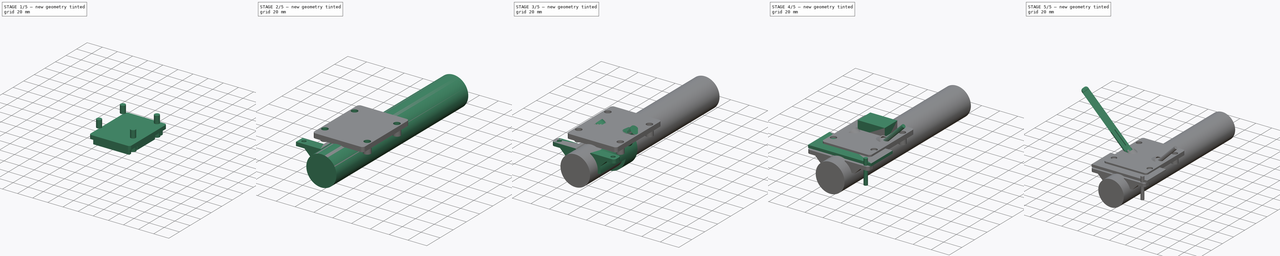
[diagram: build sequence overview — one tinted view per stage of 5, left to right]
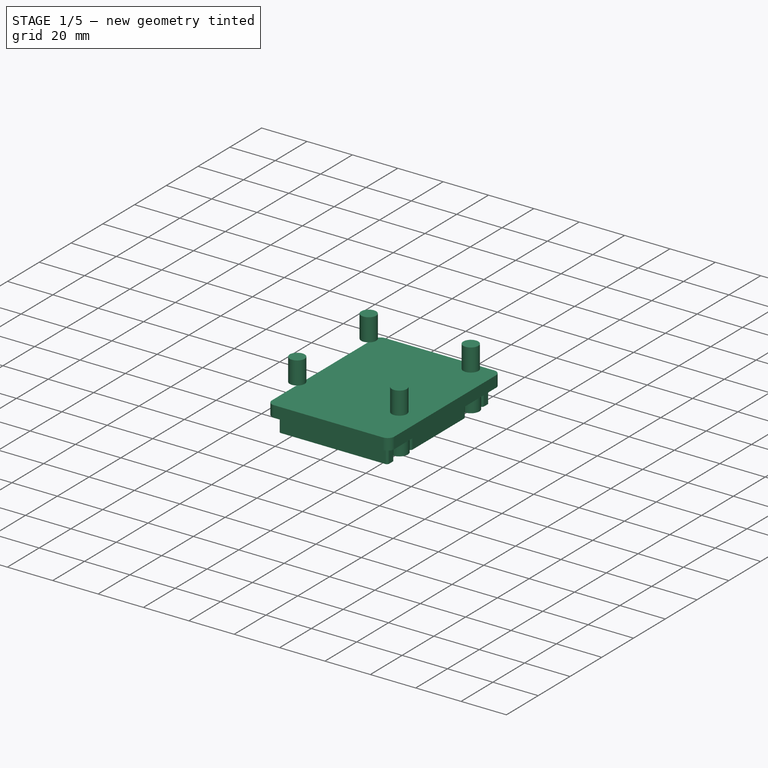
[diagram: stage 1 of 5 — iso view after this stage's code; geometry added in this stage tinted green]
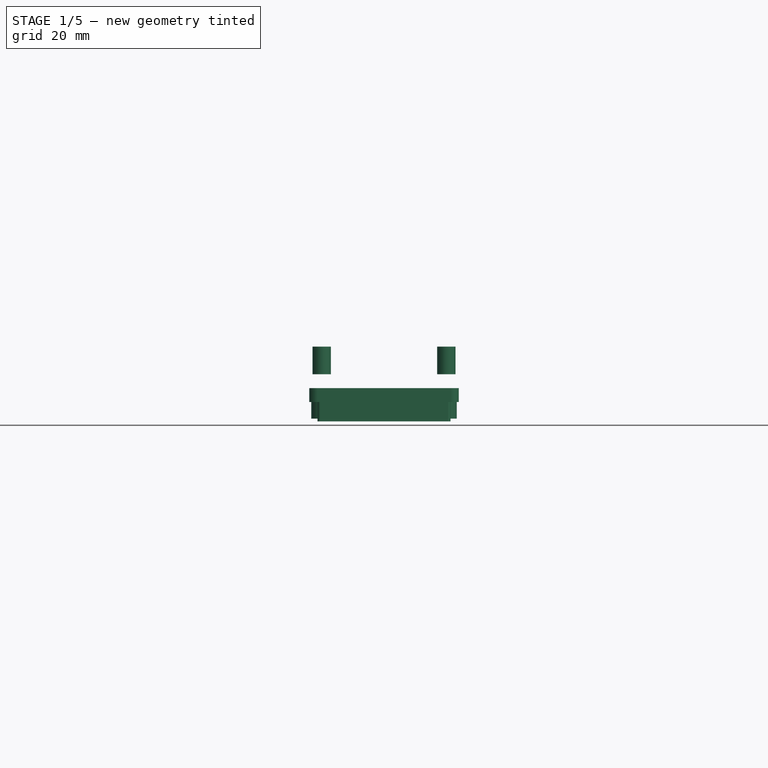
[diagram: stage 1 of 5 — front view after this stage's code; geometry added in this stage tinted green]
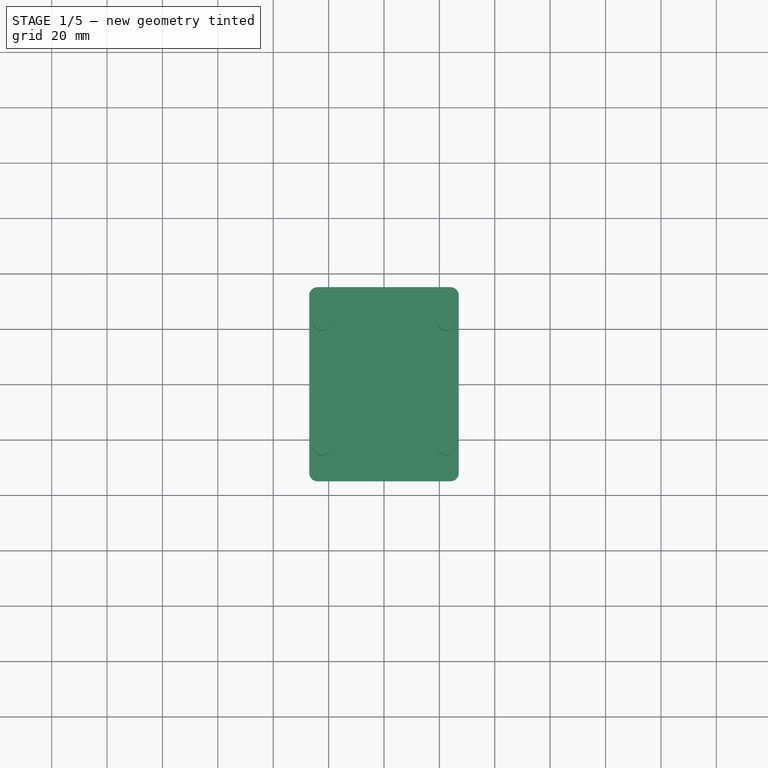
[diagram: stage 1 of 5 — top view after this stage's code; geometry added in this stage tinted green]
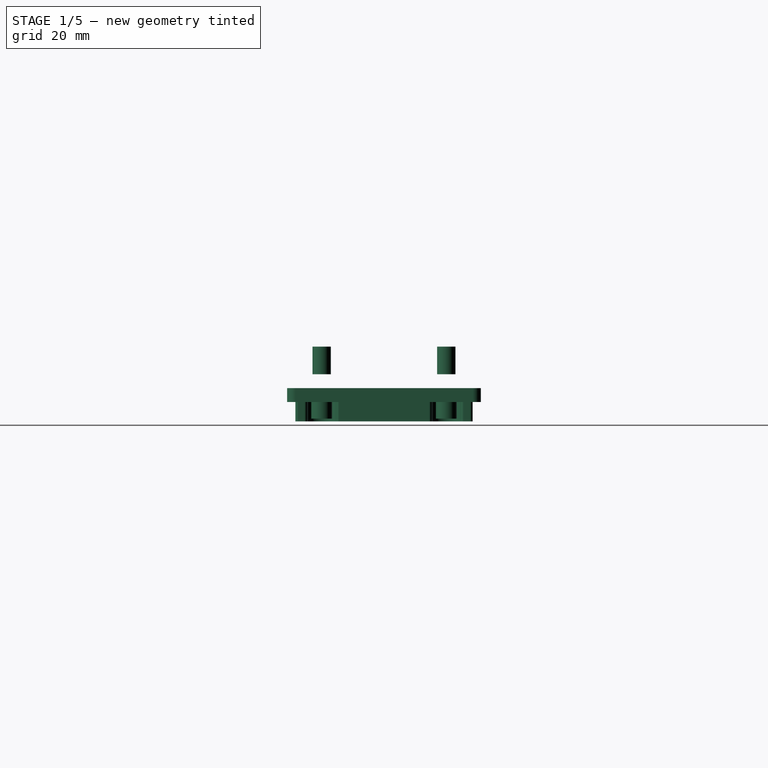
[diagram: stage 1 of 5 — right view after this stage's code; geometry added in this stage tinted green]
FCSTD DOCUMENT  (FreeCAD 0.16R)
Label: antenas_x8r
License: All rights reserved
LicenseURL: http://en.wikipedia.org/wiki/All_rights_reserved
objects: Part::Cylinder×25, Part::Cut×11, Part::MultiFuse×10, Part::Box×7, Part::Fillet×7, Sketcher::SketchObject×5, Part::Mirroring×3, PartDesign::Pad×3, Part::Chamfer×2, Part::Cone×2
note: 78 computed .brp shape members not serialized (recipe doc carries the construction recipe); baked Part::Feature solids carry a one-line shape summary decoded from their .brp

FEATURE [Part::Box] Box008  label="Cube008"
  Height = 5
  Length = 54
  Placement = pos=(-27,-35,0) rot=(0,0,1;0rad)
  Width = 70
FEATURE [Part::Fillet] Fillet005
  Base = -> Box008
  Edges = 4 edges r=3: [Edge1,Edge3,Edge5,Edge7]
FEATURE [Part::Cylinder] Cylinder019
  Angle = 360
  Height = 10
  Placement = pos=(-22.5,-22.5,10) rot=(0,0,1;0rad)
  Radius = 3.3
FEATURE [Part::Cylinder] Cylinder020
  Angle = 360
  Height = 10
  Placement = pos=(22.5,-22.5,10) rot=(0,0,1;0rad)
  Radius = 3.3
FEATURE [Part::Cylinder] Cylinder021
  Angle = 360
  Height = 10
  Placement = pos=(22.5,22.5,10) rot=(0,0,1;0rad)
  Radius = 3.3
FEATURE [Part::Cylinder] Cylinder022
  Angle = 360
  Height = 10
  Placement = pos=(-22.5,22.5,10) rot=(0,0,1;0rad)
  Radius = 3.3
FEATURE [PartDesign::Pad] Pad002
  Length = 10
  Length2 = 100
  Placement = pos=(0,0,3) rot=(0,0,1;0rad)
  Reversed = true
  Sketch = -> Sketch005
  Type = 0
FEATURE [Part::Cylinder] Cylinder023
  Angle = 360
  Height = 10
  Placement = pos=(-22.5,-22.5,-6) rot=(0,0,1;0rad)
  Radius = 3.75
FEATURE [Part::Cylinder] Cylinder024
  Angle = 360
  Height = 10
  Placement = pos=(22.5,-22.5,-6) rot=(0,0,1;0rad)
  Radius = 3.75
FEATURE [Part::Cylinder] Cylinder025
  Angle = 360
  Height = 10
  Placement = pos=(22.5,22.5,-6) rot=(0,0,1;0rad)
  Radius = 3.75
FEATURE [Part::Cylinder] Cylinder026
  Angle = 360
  Height = 10
  Placement = pos=(-22.5,22.5,-6) rot=(0,0,1;0rad)
  Radius = 3.75
FEATURE [Part::MultiFuse] Fusion010
  Shapes = -> [Cylinder023,Cylinder025,Cylinder024,Cylinder026]
FEATURE [Part::MultiFuse] Fusion011
  Shapes = -> [Fillet005,Fusion010]
FEATURE [Part::Fillet] Fillet007
  Base = -> Pad002
  Edges = 12 edges r=1: [Edge1,Edge2,Edge5,Edge8,Edge11,Edge14,Edge17,Edge20,Edge23,Edge26,Edge29,Edge32]
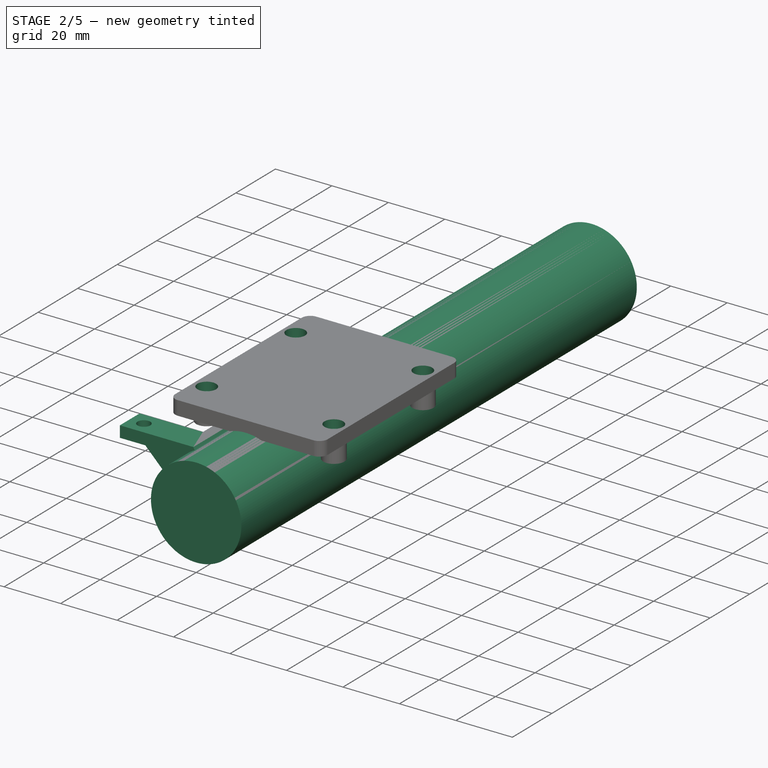
[diagram: stage 2 of 5 — iso view after this stage's code; geometry added in this stage tinted green]
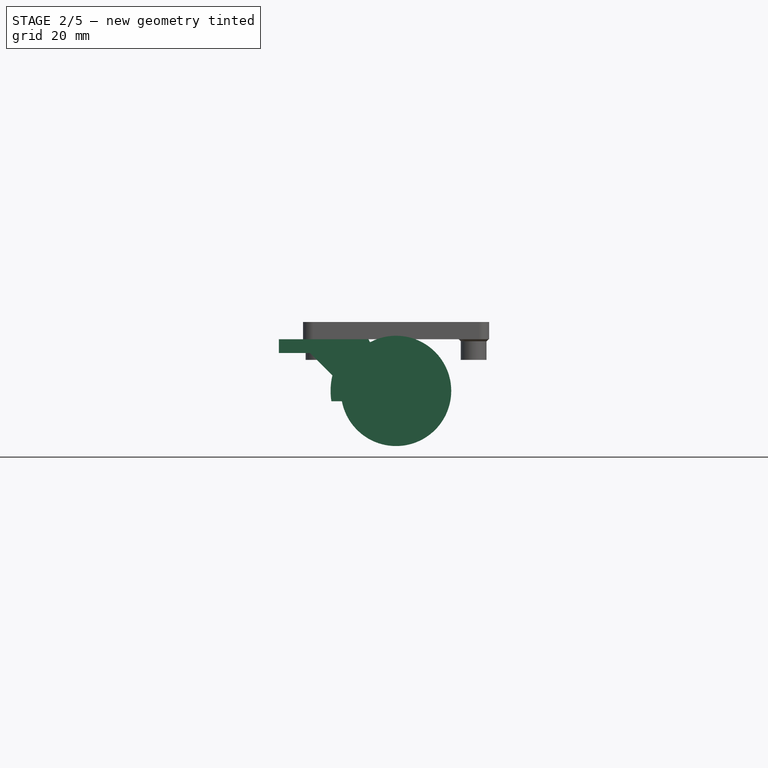
[diagram: stage 2 of 5 — front view after this stage's code; geometry added in this stage tinted green]
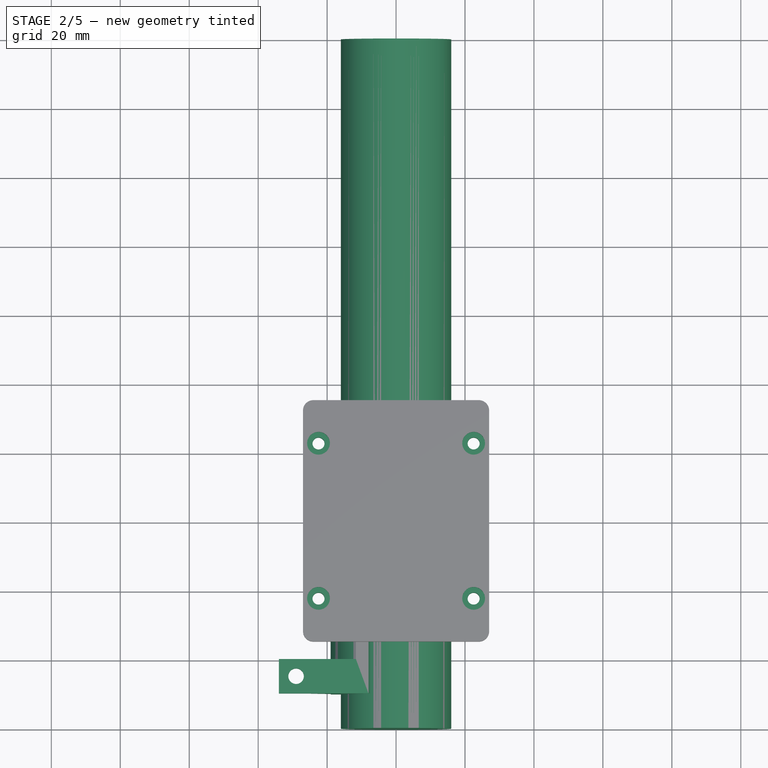
[diagram: stage 2 of 5 — top view after this stage's code; geometry added in this stage tinted green]
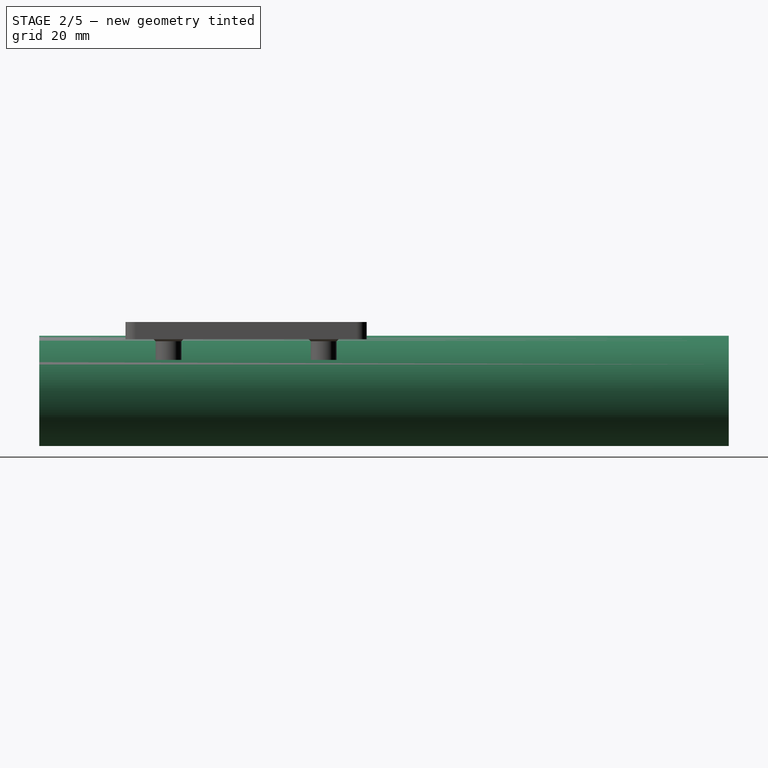
[diagram: stage 2 of 5 — right view after this stage's code; geometry added in this stage tinted green]
FEATURE [Part::Cylinder] Cylinder003
  Angle = 360
  Height = 27
  Placement = pos=(-29,-45,-20) rot=(0,0,1;0rad)
  Radius = 2.25
FEATURE [Sketcher::SketchObject] Sketch003
  Placement = pos=(0,-50,0) rot=(1,0,0;1.5708rad)
  sketch-geometry (9):
    g0: LineSegment StartX=-8 StartY=0 StartZ=0 EndX=-34 EndY=0 EndZ=0
    g1: LineSegment StartX=-34 StartY=0 StartZ=0 EndX=-34 EndY=-4 EndZ=0
    g2: LineSegment StartX=-34 StartY=-4 StartZ=0 EndX=-25 EndY=-4 EndZ=0
    g3: LineSegment StartX=-25 StartY=-4 StartZ=0 EndX=-18.4673 EndY=-10.5327 EndZ=0
    g4: ArcOfCircle CenterX=0 CenterY=-15 CenterZ=0 NormalX=0 NormalY=0 NormalZ=1 Radius=19 StartAngle=2.90425 EndAngle=3.30015
    g5: LineSegment StartX=-18.7617 StartY=-18 StartZ=0 EndX=-7.4162 EndY=-18 EndZ=0
    g6: ArcOfCircle CenterX=0 CenterY=-15 CenterZ=0 NormalX=0 NormalY=0 NormalZ=1 Radius=8 StartAngle=2.06075 EndAngle=3.52599
    g7: LineSegment StartX=-8 StartY=0 StartZ=0 EndX=-3.76471 EndY=-7.94118 EndZ=0
    g8: LineSegment [constr] StartX=0 StartY=-15 StartZ=0 EndX=-3.76471 EndY=-7.94118 EndZ=0
  constraints (27):
    c: Horizontal(g0)
    c: Coincident(g0,g1)
    c: Vertical(g1)
    c: Coincident(g1,g2)
    c: Horizontal(g2)
    c: Coincident(g2,g3)
    c: Distance(g1) = 4
    c: Distance(g-1,g0) = 34
    c: Distance(g2) = 9
    c: Angle(g2,g3) = 2.35619
    c: PointOnObject(g0,g-1)
    c: Coincident(g4,g3)
    c: Horizontal(g5)
    c: Coincident(g6,g5)
    c: Distance(g-1,g0) = 8
    c: PointOnObject(g4,g-2)
    c: Coincident(g7,g0)
    c: Coincident(g7,g6)
    c: Coincident(g8,g4)
    c: Coincident(g8,g6)
    c: Parallel(g7,g8)
    c: Coincident(g4,g6)
    c: DistanceY(g4,g-1) = 15
    c: Radius(g6) = 8
    c: DistanceY(g5,g4) = 3
    c: Coincident(g4,g5)
    c: Radius(g4) = 19
FEATURE [PartDesign::Pad] Pad
  Length = 10
  Length2 = 100
  Placement = pos=(0,-50,0) rot=(1,0,0;1.5708rad)
  Reversed = true
  Sketch = -> Sketch003
  Type = 0
FEATURE [PartDesign::Pad] Pad001
  Length = 41
  Length2 = 100
  Placement = pos=(0,-49,0) rot=(1,0,0;1.5708rad)
  Reversed = true
  Sketch = -> Sketch004
  Type = 0
FEATURE [Part::MultiFuse] Fusion006
  Shapes = -> [Pad,Pad001]
FEATURE [Part::Cut] Cut008
  Base = -> Fusion006
  Tool = -> Cylinder003
FEATURE [Part::Cylinder] Cylinder014
  Angle = 360
  Height = 200
  Placement = pos=(0,-60,-15) rot=(-1,0,0;1.5708rad)
  Radius = 16
FEATURE [Sketcher::SketchObject] Sketch005
  Placement = pos=(0,0,3) rot=(0,0,1;0rad)
  sketch-geometry (16):
    g0: LineSegment StartX=-24 StartY=17.4167 StartZ=0 EndX=-24 EndY=-17.4167 EndZ=0
    g1: LineSegment StartX=24 StartY=-17.4167 StartZ=0 EndX=24 EndY=17.4167 EndZ=0
    g2: ArcOfCircle CenterX=-22.5 CenterY=22.5 CenterZ=0 NormalX=0 NormalY=0 NormalZ=1 Radius=5.3 StartAngle=4.42545 EndAngle=8.14092
    g3: ArcOfCircle CenterX=22.5 CenterY=22.5 CenterZ=0 NormalX=0 NormalY=0 NormalZ=1 Radius=5.3 StartAngle=1.28386 EndAngle=4.99933
    g4: ArcOfCircle CenterX=-22.5 CenterY=-22.5 CenterZ=0 NormalX=0 NormalY=0 NormalZ=1 Radius=5.3 StartAngle=4.42545 EndAngle=8.14092
    g5: ArcOfCircle CenterX=22.5 CenterY=-22.5 CenterZ=0 NormalX=0 NormalY=0 NormalZ=1 Radius=5.3 StartAngle=1.28386 EndAngle=4.99933
    g6: LineSegment StartX=-24 StartY=27.5833 StartZ=0 EndX=-24 EndY=32 EndZ=0
    g7: LineSegment StartX=-24 StartY=32 StartZ=0 EndX=24 EndY=32 EndZ=0
    g8: LineSegment StartX=24 StartY=32 StartZ=0 EndX=24 EndY=27.5833 EndZ=0
    g9: LineSegment [constr] StartX=-24 StartY=27.5833 StartZ=0 EndX=-24 EndY=17.4167 EndZ=0
    g10: LineSegment [constr] StartX=24 StartY=27.5833 StartZ=0 EndX=24 EndY=17.4167 EndZ=0
    g11: LineSegment [constr] StartX=24 StartY=-17.4167 StartZ=0 EndX=24 EndY=-27.5833 EndZ=0
    g12: LineSegment StartX=-24 StartY=-27.5833 StartZ=0 EndX=-24 EndY=-32 EndZ=0
    g13: LineSegment StartX=-24 StartY=-32 StartZ=0 EndX=24 EndY=-32 EndZ=0
    g14: LineSegment StartX=24 StartY=-32 StartZ=0 EndX=24 EndY=-27.5833 EndZ=0
    g15: LineSegment [constr] StartX=-24 StartY=-17.4167 StartZ=0 EndX=-24 EndY=-27.5833 EndZ=0
  constraints (45):
    c: Vertical(g0)
    c: Vertical(g1)
    c: Coincident(g2,g0)
    c: Coincident(g3,g1)
    c: Coincident(g4,g0)
    c: Coincident(g5,g1)
    c: Distance(g0,g1) = 48
    c: Equal(g2,g3)
    c: Equal(g3,g5)
    c: Equal(g5,g4)
    c: Radius(g2) = 5.3
    c: Symmetric(g4,g2,g-1)
    c: Symmetric(g4,g5,g-2)
    c: Symmetric(g5,g3,g-1)
    c: Distance(g2,g3) = 45
    c: Distance(g4,g2) = 45
    c: Equal(g0,g1)
    c: Vertical(g6)
    c: Coincident(g6,g7)
    c: Horizontal(g7)
    c: Coincident(g7,g8)
    c: Vertical(g8)
    c: Coincident(g2,g6)
    c: Coincident(g3,g8)
    c: Coincident(g9,g2)
    c: Coincident(g0,g9)
    c: Vertical(g9)
    c: Coincident(g10,g3)
    c: Coincident(g10,g1)
    c: Vertical(g10)
    c: Coincident(g11,g1)
    c: Coincident(g11,g5)
    c: Vertical(g12)
    c: Coincident(g12,g13)
    c: Horizontal(g13)
    c: Coincident(g13,g14)
    c: Coincident(g14,g5)
    c: Vertical(g14)
    c: Vertical(g11)
    c: Coincident(g4,g12)
    c: Coincident(g15,g0)
    c: Coincident(g15,g4)
    c: Vertical(g15)
    c: Distance(g12,g6) = 64
    c: DistanceY(g-1,g6) = 32
FEATURE [Part::Cylinder] Cylinder015
  Angle = 360
  Height = 20
  Placement = pos=(-22.5,-22.5,-5) rot=(0,0,1;0rad)
  Radius = 1.75
FEATURE [Part::Cylinder] Cylinder016
  Angle = 360
  Height = 20
  Placement = pos=(22.5,-22.5,-5) rot=(0,0,1;0rad)
  Radius = 1.75
FEATURE [Part::Cylinder] Cylinder017
  Angle = 360
  Height = 20
  Placement = pos=(-22.5,22.5,-5) rot=(0,0,1;0rad)
  Radius = 1.75
FEATURE [Part::Cylinder] Cylinder018
  Angle = 360
  Height = 20
  Placement = pos=(22.5,22.5,-5) rot=(0,0,1;0rad)
  Radius = 1.75
FEATURE [Part::MultiFuse] Fusion009
  Placement = pos=(0,0,-8) rot=(0,0,1;0rad)
  Shapes = -> [Cylinder015,Cylinder016,Cylinder018,Cylinder017,Cylinder019,Cylinder021,Cylinder020,Cylinder022]
FEATURE [Part::Cut] Cut012
  Base = -> Fusion011
  Tool = -> Fusion009
FEATURE [Part::Cut] Cut013
  Base = -> Cut012
  Tool = -> Fillet007
FEATURE [Part::Chamfer] Chamfer001
  Base = -> Cut013
  Edges = 4 edges r=0.6: [Edge25,Edge50,Edge51,Edge52]
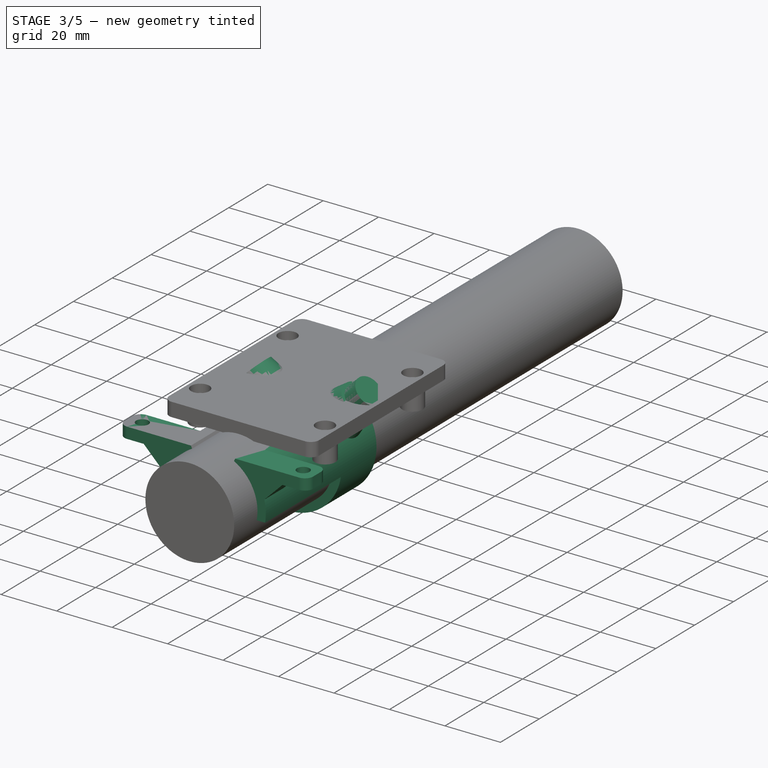
[diagram: stage 3 of 5 — iso view after this stage's code; geometry added in this stage tinted green]
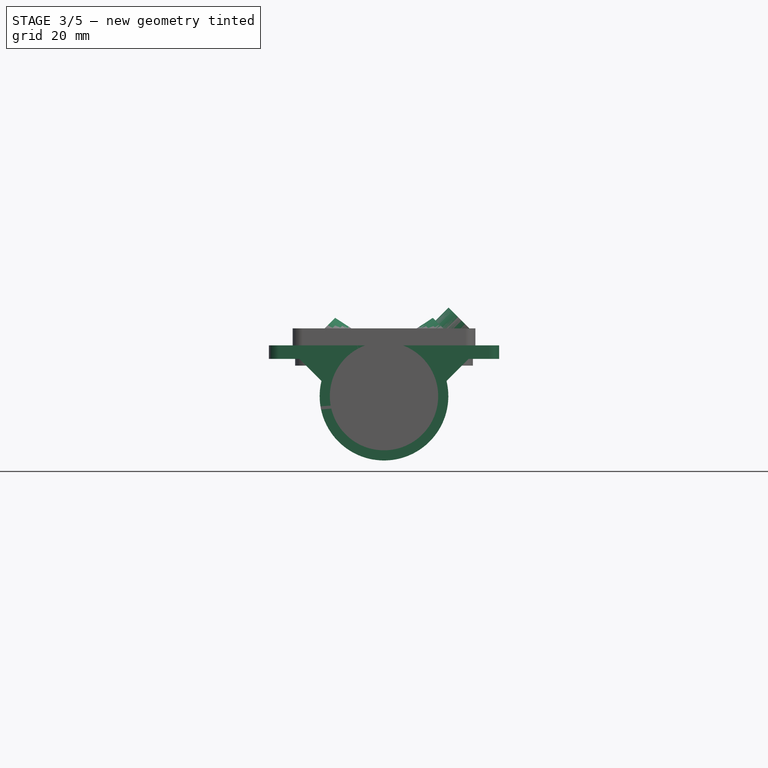
[diagram: stage 3 of 5 — front view after this stage's code; geometry added in this stage tinted green]
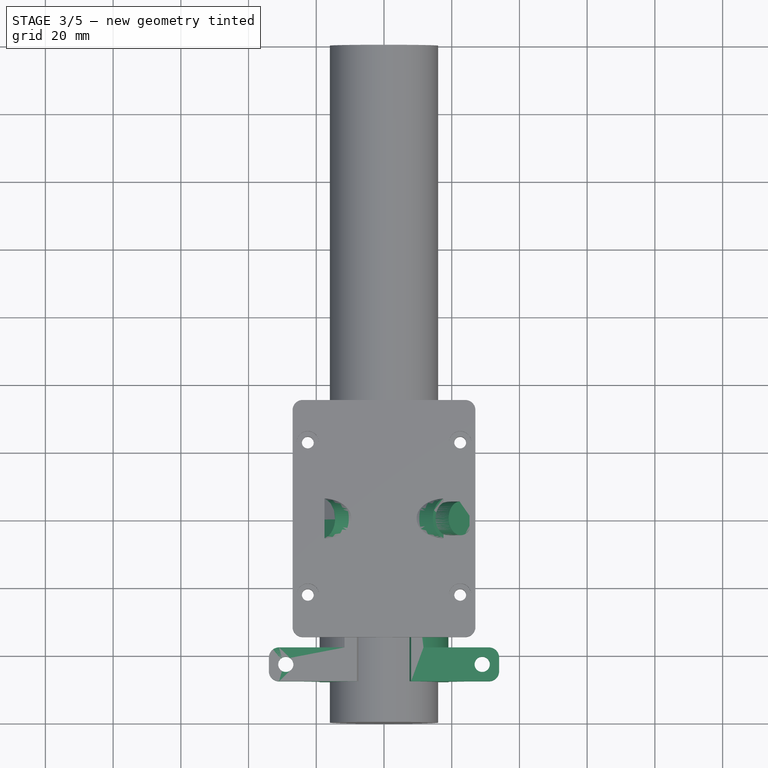
[diagram: stage 3 of 5 — top view after this stage's code; geometry added in this stage tinted green]
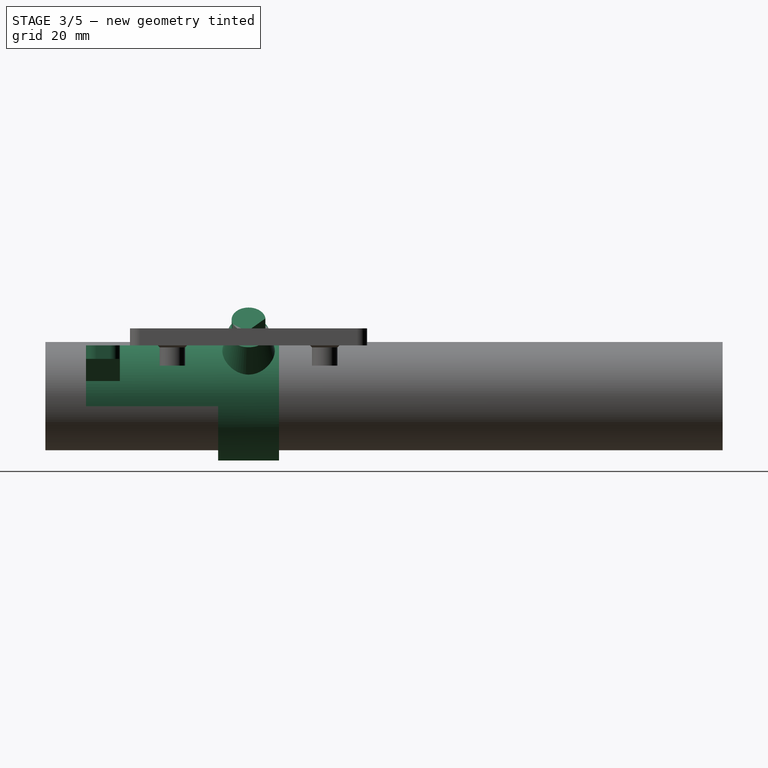
[diagram: stage 3 of 5 — right view after this stage's code; geometry added in this stage tinted green]
FEATURE [Sketcher::SketchObject] Sketch001
  Placement = pos=(0,0,-15) rot=(0.92388,0,-0.382683;3.14159rad)
  Support = -> Cylinder006 [Face3]
FEATURE [Part::Cone] Cone
  Angle = 360
  Height = 11
  Placement = pos=(11,0,-4) rot=(0,1,0;0.785398rad)
  Radius1 = 8.5
  Radius2 = 6.15
FEATURE [Part::Cylinder] Cylinder007
  Angle = 360
  Height = 18
  Placement = pos=(0,-9,-15) rot=(-1,0,0;1.5708rad)
  Radius = 19
FEATURE [Sketcher::SketchObject] Sketch004
  Placement = pos=(0,-49,0) rot=(1,0,0;1.5708rad)
  sketch-geometry (6):
    g0: LineSegment StartX=-8 StartY=0 StartZ=0 EndX=-11.6619 EndY=0 EndZ=0
    g1: ArcOfCircle CenterX=0 CenterY=-15 CenterZ=0 NormalX=0 NormalY=0 NormalZ=1 Radius=19 StartAngle=2.23164 EndAngle=3.30015
    g2: LineSegment StartX=-18.7617 StartY=-18 StartZ=0 EndX=-7.4162 EndY=-18 EndZ=0
    g3: LineSegment StartX=-8 StartY=0 StartZ=0 EndX=-3.76471 EndY=-7.94118 EndZ=0
    g4: ArcOfCircle CenterX=0 CenterY=-15 CenterZ=0 NormalX=0 NormalY=0 NormalZ=1 Radius=8 StartAngle=2.06075 EndAngle=3.52599
    g5: LineSegment [constr] StartX=-3.76471 StartY=-7.94118 StartZ=0 EndX=0 EndY=-15 EndZ=0
  constraints (18):
    c: Coincident(g1,g0)
    c: PointOnObject(g0,g-1)
    c: Horizontal(g0)
    c: Coincident(g4,g3)
    c: Coincident(g4,g2)
    c: Radius(g4) = 8
    c: Coincident(g0,g3)
    c: Radius(g1) = 19
    c: Coincident(g1,g4)
    c: Distance(g-1,g1) = 15
    c: Distance(g-1,g0) = 8
    c: Coincident(g1,g2)
    c: PointOnObject(g1,g-2)
    c: Horizontal(g2)
    c: DistanceY(g2,g1) = 3
    c: Coincident(g5,g3)
    c: Coincident(g5,g1)
    c: Parallel(g3,g5)
FEATURE [Part::Cylinder] Cylinder011
  Angle = 360
  Height = 12
  Placement = pos=(0,2,0) rot=(0,0,1;0rad)
  Radius = 5
FEATURE [Part::Box] Box006  label="Cube006"
  Height = 16
  Length = 30
  Placement = pos=(-15,5.2,-2) rot=(0,0,1;0rad)
  Width = 20
FEATURE [Part::Cut] Cut007
  Base = -> Cylinder011
  Tool = -> Box006
FEATURE [Part::Cylinder] Cylinder012
  Angle = 360
  Height = 12
  Placement = pos=(0,2,-4) rot=(0,0,1;0rad)
  Radius = 1.75
FEATURE [Part::Cylinder] Cylinder013
  Angle = 360
  Height = 5
  Placement = pos=(0,2,-7) rot=(0,0,1;0rad)
  Radius = 3.2
FEATURE [Part::MultiFuse] Fusion003
  Placement = pos=(13.1421,-1.41421,0.142136) rot=(-0.281085,0.678598,-0.678598;1.09606rad)
  Shapes = -> [Cylinder013,Cylinder012,Cut007]
FEATURE [Part::Cone] Cone001
  Angle = 360
  Height = 11
  Placement = pos=(-11,0,-4) rot=(0,-1,0;0.785398rad)
  Radius1 = 8.5
  Radius2 = 6.15
FEATURE [Part::MultiFuse] Fusion005
  Shapes = -> [Cylinder007,Cone001,Cone]
FEATURE [Part::Fillet] Fillet002
  Base = -> Cut008
  Edges = 2 edges r=3: [Edge2,Edge16]
  Placement = pos=(0,2,0) rot=(0,0,1;0rad)
FEATURE [Part::Mirroring] Part__Mirroring004  label="Fillet002 (Mirror #3)"
  Base = (0,0,0)
  Normal = (1,0,0)
  Source = -> Fillet002
FEATURE [Part::MultiFuse] Fusion007
  Shapes = -> [Fillet002,Part__Mirroring004]
FEATURE [Part::MultiFuse] Fusion008
  Shapes = -> [Fusion007,Fusion005]
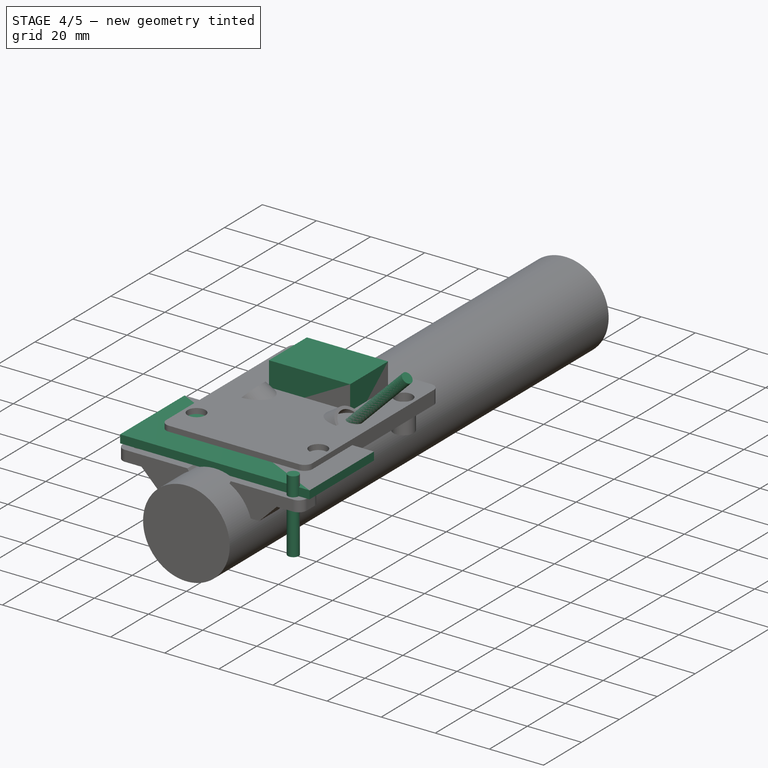
[diagram: stage 4 of 5 — iso view after this stage's code; geometry added in this stage tinted green]
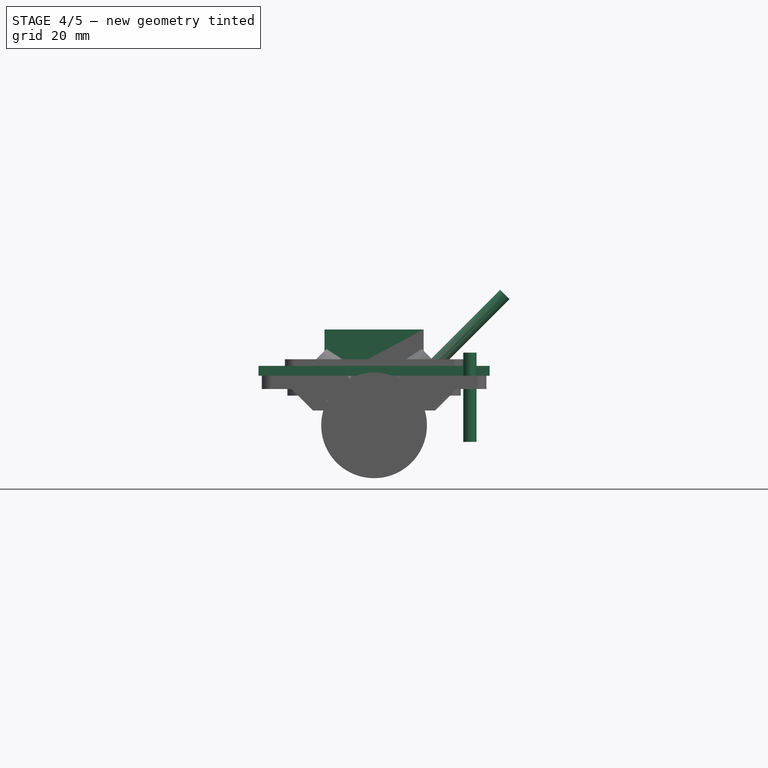
[diagram: stage 4 of 5 — front view after this stage's code; geometry added in this stage tinted green]
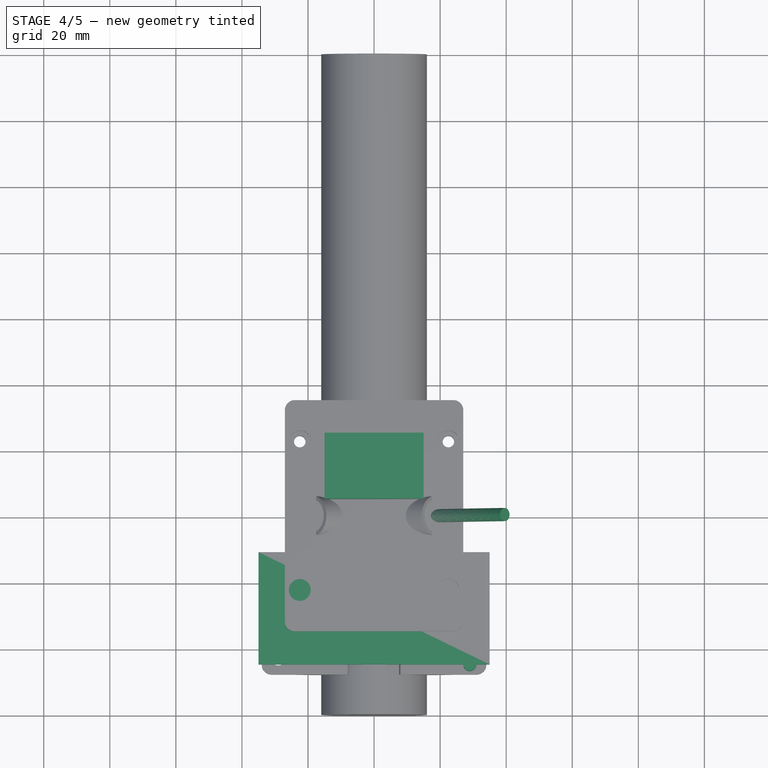
[diagram: stage 4 of 5 — top view after this stage's code; geometry added in this stage tinted green]
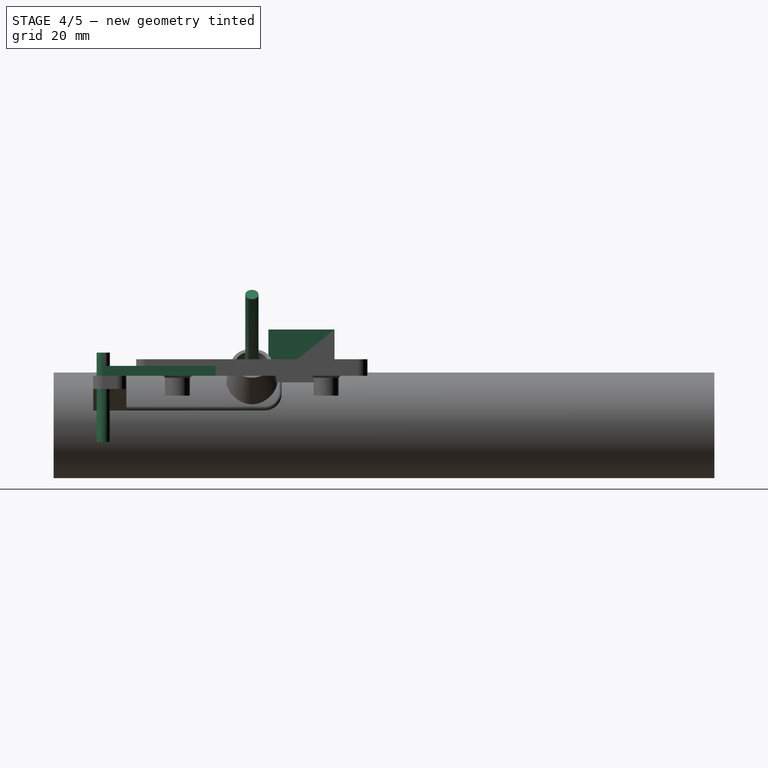
[diagram: stage 4 of 5 — right view after this stage's code; geometry added in this stage tinted green]
FEATURE [Part::Box] Box002  label="Cube002"
  Height = 16
  Length = 30
  Placement = pos=(-15,5,-2) rot=(0,0,1;0rad)
  Width = 20
FEATURE [Part::Box] Box003  label="Cube003"
  Height = 3
  Length = 70
  Placement = pos=(-35,-45,0) rot=(0,0,1;0rad)
  Width = 34
FEATURE [Part::Cylinder] Cylinder004
  Angle = 360
  Height = 27
  Placement = pos=(29,-45,-20) rot=(0,0,1;0rad)
  Radius = 2
FEATURE [Part::Cylinder] Cylinder005
  Angle = 360
  Height = 200
  Placement = pos=(0,-60,-15) rot=(-1,0,0;1.5708rad)
  Radius = 16
FEATURE [Sketcher::SketchObject] Sketch
  Placement = pos=(0,-80,0) rot=(-1,0,0;4.71239rad)
FEATURE [Part::Cylinder] Cylinder006
  Angle = 360
  Height = 56
  Placement = pos=(0,0,-15) rot=(0,1,0;0.785398rad)
  Radius = 2
FEATURE [Part::Cylinder] Cylinder008
  Angle = 360
  Height = 200
  Placement = pos=(0,-60,-15) rot=(-1,0,0;1.5708rad)
  Radius = 16
FEATURE [Part::Mirroring] Part__Mirroring003  label="Fusion003 (Mirror #4)"
  Base = (0,0,0)
  Normal = (1,0,0)
  Source = -> Fusion003
FEATURE [Part::MultiFuse] Fusion004
  Shapes = -> [Part__Mirroring003,Fusion003]
FEATURE [Part::Box] Box007  label="Cube007"
  Height = 24.5
  Length = 42
  Placement = pos=(-21,-54,-35) rot=(0,0,1;0rad)
  Width = 70
FEATURE [Part::Cut] Cut009
  Base = -> Fusion008
  Tool = -> Fusion004
FEATURE [Part::Cut] Cut010
  Base = -> Cut009
  Tool = -> Cylinder014
FEATURE [Part::Cut] Cut011
  Base = -> Cut010
  Tool = -> Box007
FEATURE [Part::Fillet] Fillet003
  Base = -> Cut011
  Edges = 2 edges r=5: [Edge20,Edge53]
FEATURE [Part::Fillet] Fillet004
  Base = -> Fillet003
  Edges = 6 edges r=1: [Edge7,Edge12,Edge48,Edge52,Edge53,Edge54]
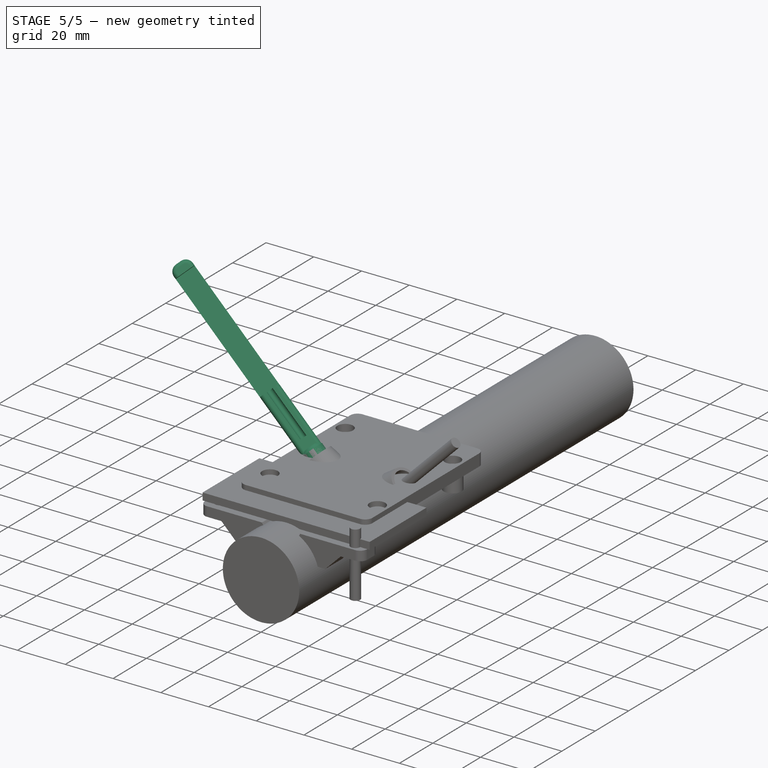
[diagram: stage 5 of 5 — iso view after this stage's code; geometry added in this stage tinted green]
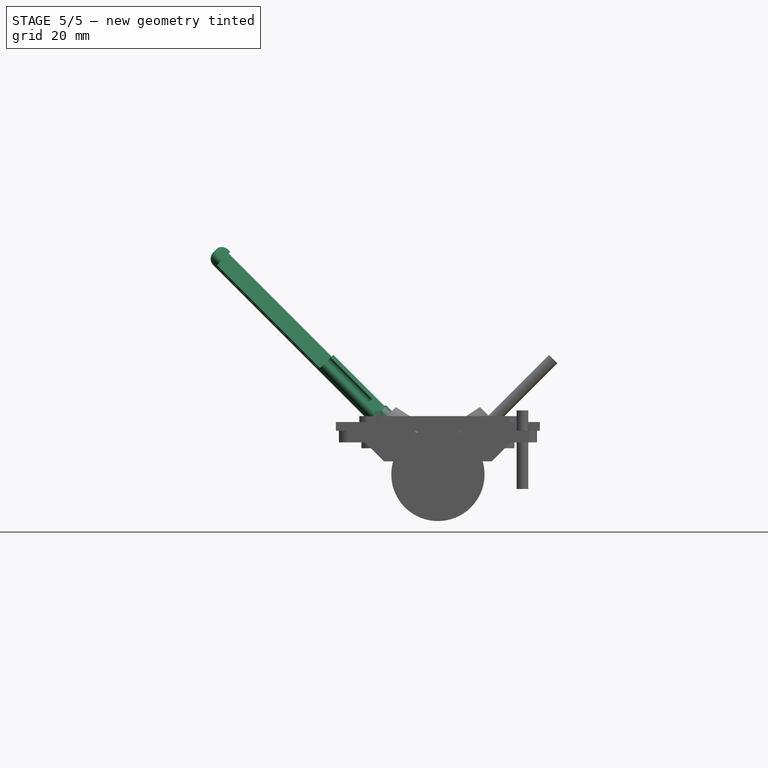
[diagram: stage 5 of 5 — front view after this stage's code; geometry added in this stage tinted green]
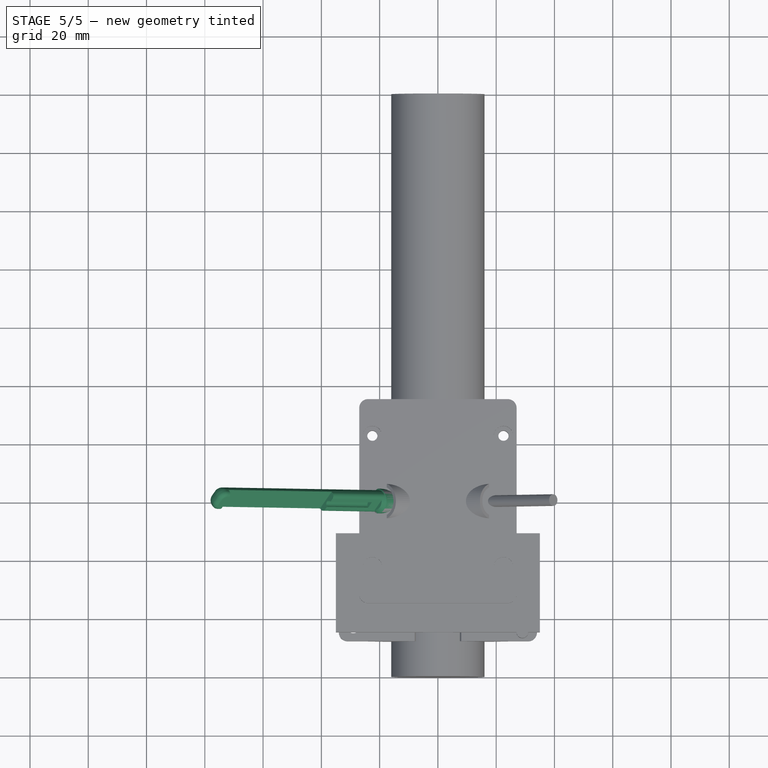
[diagram: stage 5 of 5 — top view after this stage's code; geometry added in this stage tinted green]
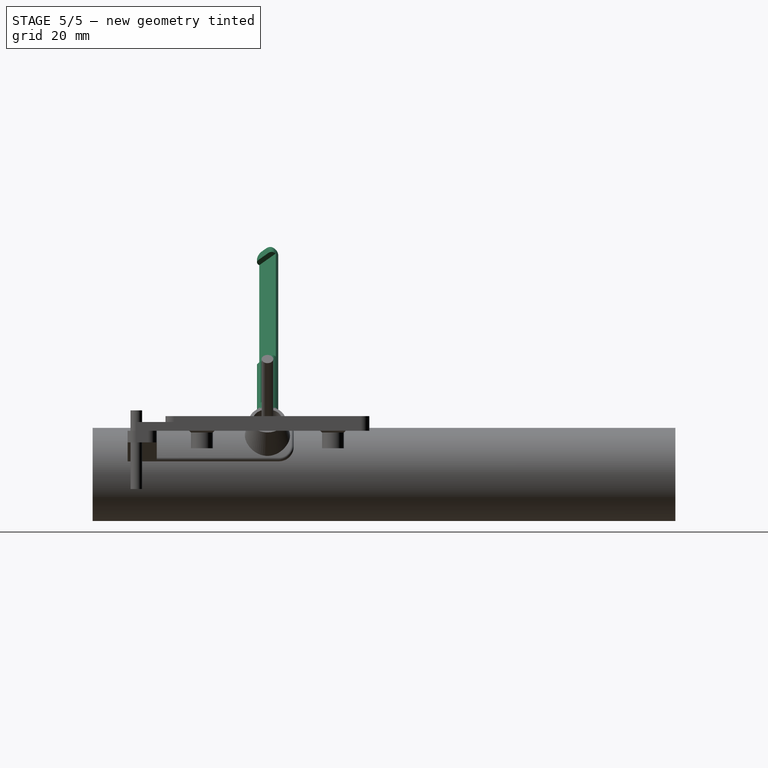
[diagram: stage 5 of 5 — right view after this stage's code; geometry added in this stage tinted green]
FEATURE [Part::Box] Box  label="Cube"
  Height = 90
  Length = 8
  Width = 5
FEATURE [Part::Fillet] Fillet
  Base = -> Box
  Edges = 5 edges r=3: [Edge2,Edge3,Edge6,Edge7,Edge12]
FEATURE [Part::Fillet] Fillet001
  Base = -> Fillet
  Edges = 1 edges r=1.5: [Edge1]
FEATURE [Part::Box] Box001  label="Cube001"
  Height = 50
  Length = 12
  Placement = pos=(-1,-6,36) rot=(0,0,1;0rad)
  Width = 8
FEATURE [Part::Cut] Cut
  Base = -> Fillet001
  Tool = -> Box001
FEATURE [Part::Cylinder] Cylinder
  Angle = 360
  Height = 50
  Placement = pos=(4,0,16) rot=(0,0,1;0rad)
  Radius = 1.25
FEATURE [Part::Cut] Cut001
  Base = -> Cut
  Placement = pos=(-4,0,0) rot=(0,0,1;0rad)
  Tool = -> Cylinder
FEATURE [Part::Cylinder] Cylinder001
  Angle = 360
  Height = 12
  Placement = pos=(0,2,0) rot=(0,0,1;0rad)
  Radius = 4.25
FEATURE [Part::Chamfer] Chamfer
  Base = -> Cylinder001
  Edges = 1 edges r=1.2: [Edge1]
FEATURE [Part::Cylinder] Cylinder002
  Angle = 360
  Height = 12
  Placement = pos=(0,2,-2) rot=(0,0,1;0rad)
  Radius = 1.6
FEATURE [Part::MultiFuse] Fusion
  Shapes = -> [Cut001,Chamfer]
FEATURE [Part::Cut] Cut002
  Base = -> Fusion
  Tool = -> Cylinder002
FEATURE [Part::Cut] Cut003
  Base = -> Cut002
  Placement = pos=(12,-1.4,-1) rot=(-0.281085,0.678598,-0.678598;1.09606rad)
  Tool = -> Box002
FEATURE [Part::Mirroring] Part__Mirroring  label="Cut003 (Mirror #1)"
  Base = (0,0,0)
  Normal = (1,0,0)
  Source = -> Cut003
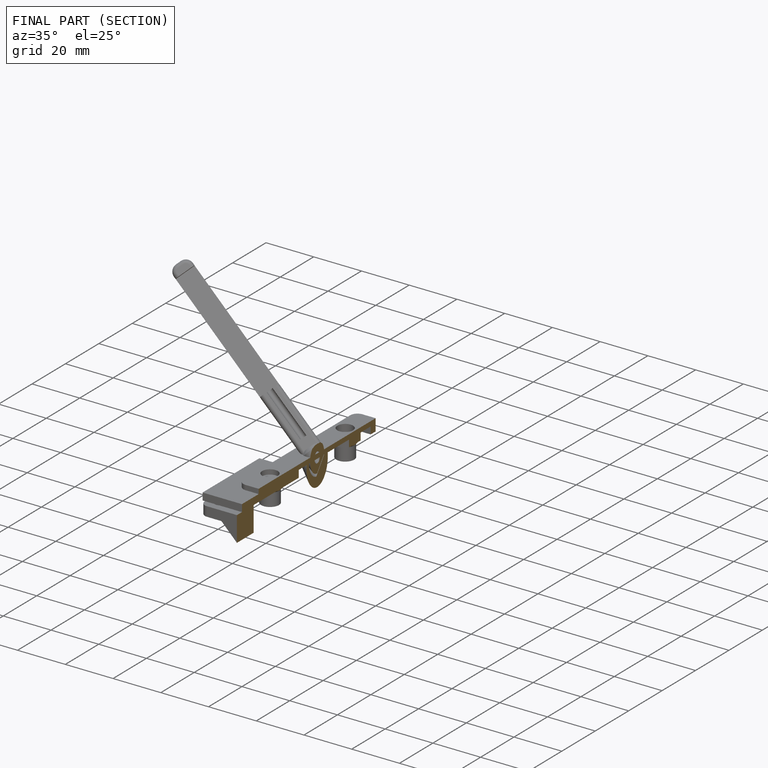
[diagram: finished part — half-section view (interior)]
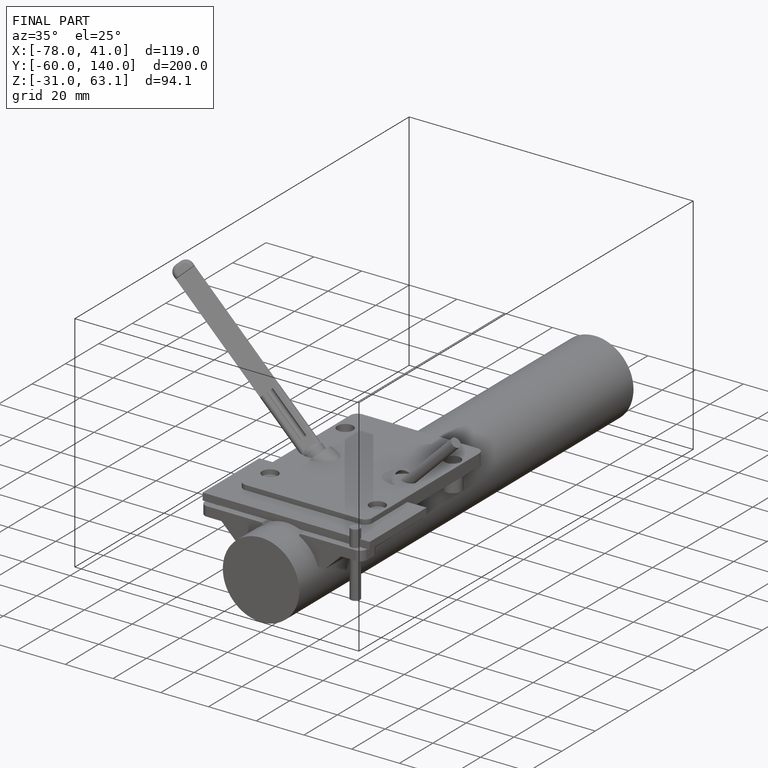
[diagram: finished part — iso view with bounding-box wireframe]
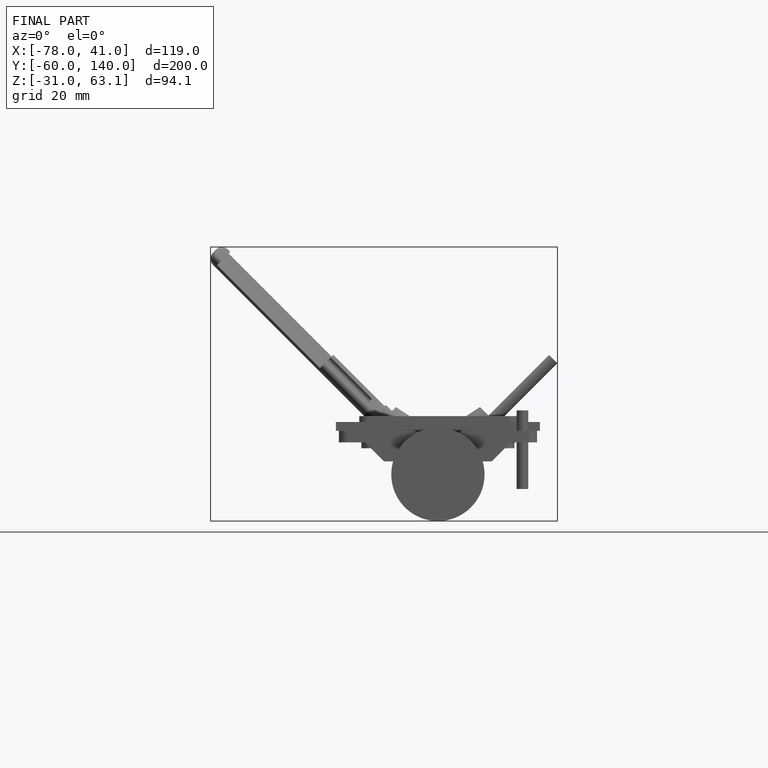
[diagram: finished part — front view with bounding-box wireframe]
